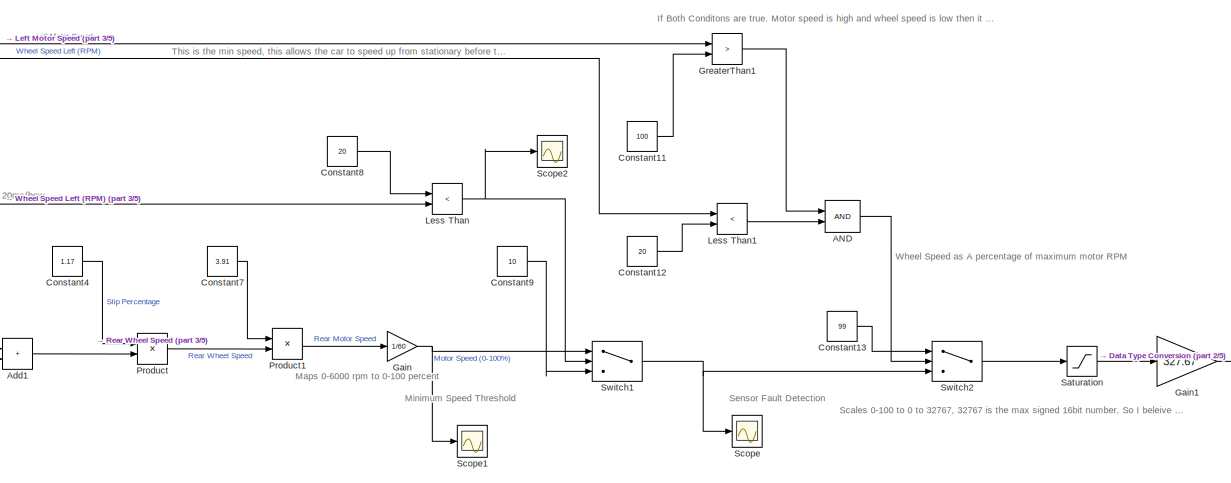
[diagram: root canvas - part 1/5, top center region]
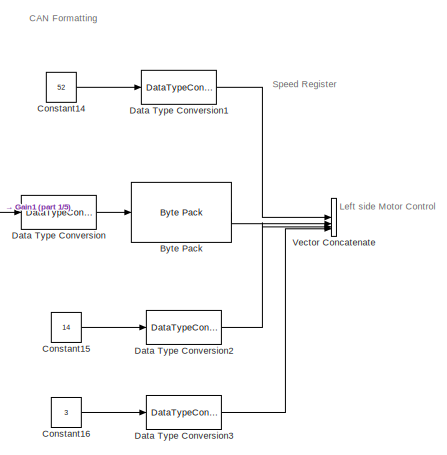
[diagram: root canvas - part 2/5, top right region]
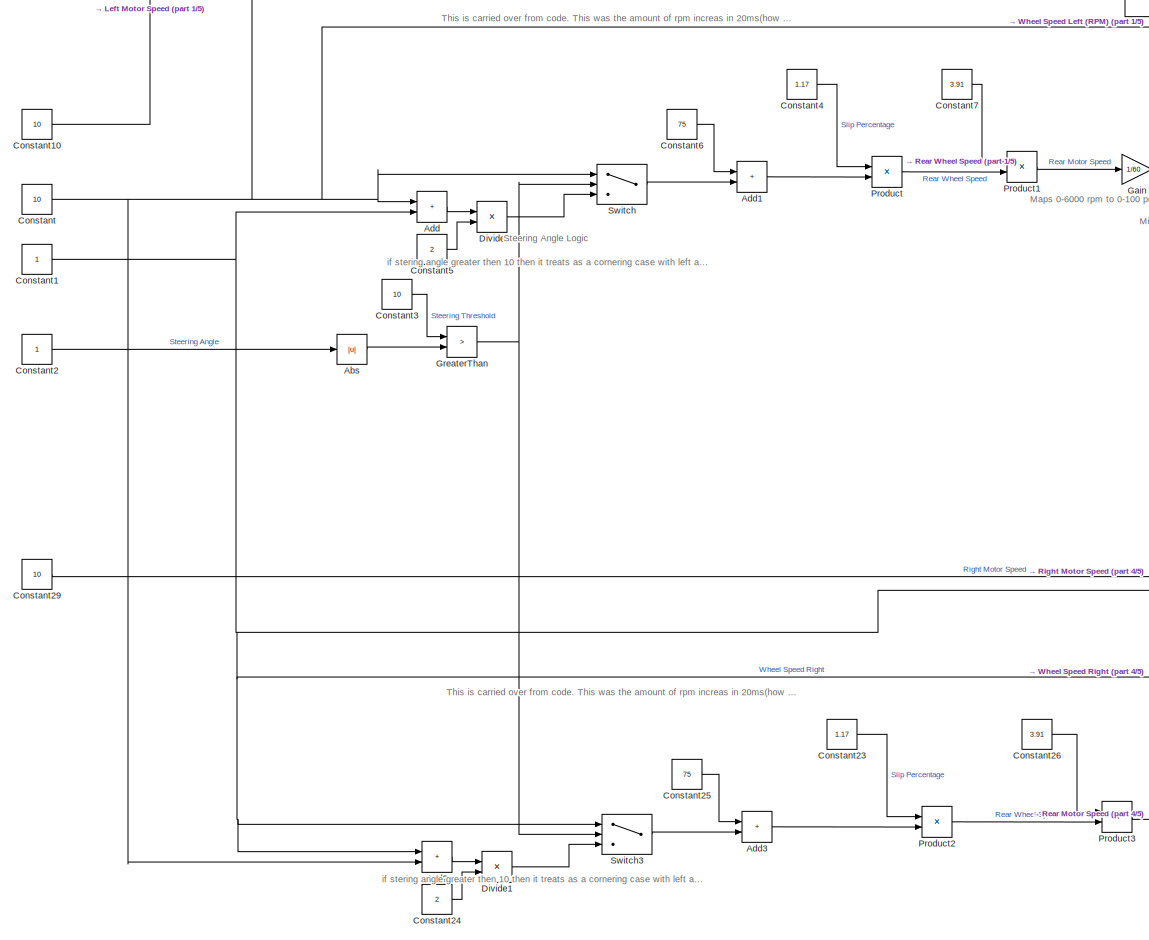
[diagram: root canvas - part 3/5, left side, full height]
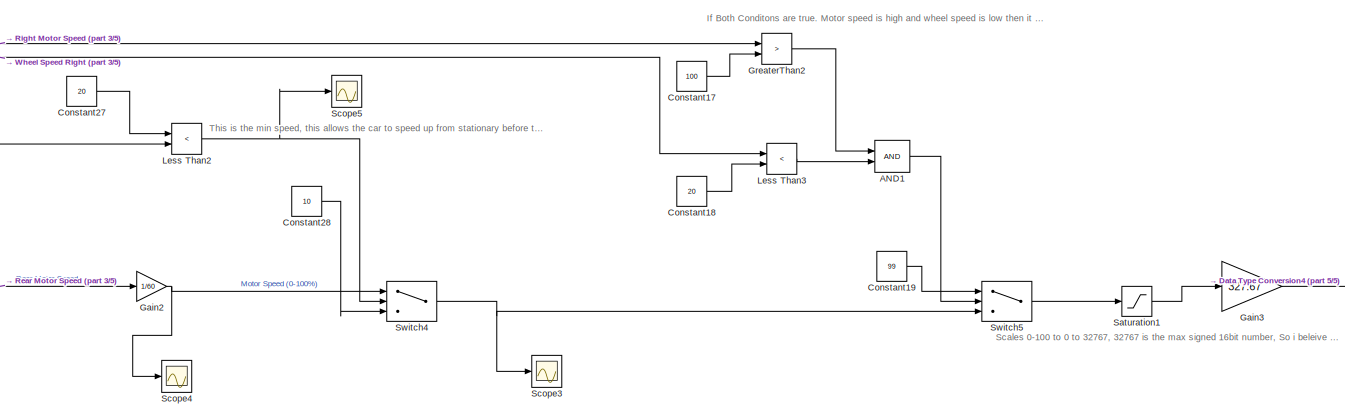
[diagram: root canvas - part 4/5, bottom center region]
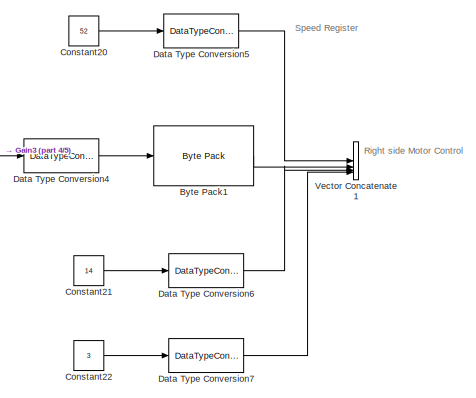
[diagram: root canvas - part 5/5, bottom right region]
MODEL slx_10c5e8b03d2c
KIND model
CONFIG AbsTol = auto
CONFIG EnableMultiTasking = off
CONFIG FixedStep = auto
CONFIG MaxStep = auto
CONFIG MinStep = auto
CONFIG RelTol = 1e-3
CONFIG SampleTimeConstraint = Unconstrained
CONFIG SolverName = VariableStepAuto
CONFIG StartTime = 0.0
CONFIG StopTime = 10.0
BLOCK [Logic] AND
  AllPortsSameDT = off
  IconShape = distinctive
  OutDataTypeStr = boolean
BLOCK [Logic] AND1
  AllPortsSameDT = off
  IconShape = distinctive
  OutDataTypeStr = boolean
BLOCK [Abs] Abs
  SaturateOnIntegerOverflow = off
BLOCK [Sum] Add
  IconShape = rectangular
BLOCK [Sum] Add1
  IconShape = rectangular
BLOCK [Sum] Add2
  IconShape = rectangular
BLOCK [Sum] Add3
  IconShape = rectangular
BLOCK [Reference] Byte Pack  REF=stmutilitieslib/Byte Pack
  SourceBlock = stmutilitieslib/Byte Pack
  SourceType = Byte pack
BLOCK [Reference] Byte Pack1  REF=stmutilitieslib/Byte Pack
  SourceBlock = stmutilitieslib/Byte Pack
  SourceType = Byte pack
BLOCK [Constant] Constant
  Value = 10
BLOCK [Constant] Constant1
BLOCK [Constant] Constant10
  Value = 10
BLOCK [Constant] Constant11
  Value = 100
BLOCK [Constant] Constant12
  Value = 20
BLOCK [Constant] Constant13
  Value = 99
BLOCK [Constant] Constant14
  Value = 52
BLOCK [Constant] Constant15
  Value = 14
BLOCK [Constant] Constant16
  Value = 3
BLOCK [Constant] Constant17
  Value = 100
BLOCK [Constant] Constant18
  Value = 20
BLOCK [Constant] Constant19
  Value = 99
BLOCK [Constant] Constant2
BLOCK [Constant] Constant20
  Value = 52
BLOCK [Constant] Constant21
  Value = 14
BLOCK [Constant] Constant22
  Value = 3
BLOCK [Constant] Constant23
  Value = 1.17
BLOCK [Constant] Constant24
  Value = 2
BLOCK [Constant] Constant25
  Value = 75
BLOCK [Constant] Constant26
  Value = 3.91
BLOCK [Constant] Constant27
  Value = 20
BLOCK [Constant] Constant28
  Value = 10
BLOCK [Constant] Constant29
  Value = 10
BLOCK [Constant] Constant3
  Value = 10
BLOCK [Constant] Constant4
  Value = 1.17
BLOCK [Constant] Constant5
  Value = 2
BLOCK [Constant] Constant6
  Value = 75
BLOCK [Constant] Constant7
  Value = 3.91
BLOCK [Constant] Constant8
  Value = 20
BLOCK [Constant] Constant9
  Value = 10
BLOCK [DataTypeConversion] Data Type Conversion
  OutDataTypeStr = int16
  RndMeth = Floor
  SaturateOnIntegerOverflow = off
BLOCK [DataTypeConversion] Data Type Conversion1
  OutDataTypeStr = uint8
  RndMeth = Floor
  SaturateOnIntegerOverflow = off
BLOCK [DataTypeConversion] Data Type Conversion2
  OutDataTypeStr = uint8
  RndMeth = Floor
  SaturateOnIntegerOverflow = off
BLOCK [DataTypeConversion] Data Type Conversion3
  OutDataTypeStr = uint8
  RndMeth = Floor
  SaturateOnIntegerOverflow = off
BLOCK [DataTypeConversion] Data Type Conversion4
  OutDataTypeStr = int16
  RndMeth = Floor
  SaturateOnIntegerOverflow = off
BLOCK [DataTypeConversion] Data Type Conversion5
  OutDataTypeStr = uint8
  RndMeth = Floor
  SaturateOnIntegerOverflow = off
BLOCK [DataTypeConversion] Data Type Conversion6
  OutDataTypeStr = uint8
  RndMeth = Floor
  SaturateOnIntegerOverflow = off
BLOCK [DataTypeConversion] Data Type Conversion7
  OutDataTypeStr = uint8
  RndMeth = Floor
  SaturateOnIntegerOverflow = off
BLOCK [Product] Divide
  Inputs = */
BLOCK [Product] Divide1
  Inputs = */
BLOCK [Gain] Gain
  Gain = 1/60
BLOCK [Gain] Gain1
  Gain = 327.67
BLOCK [Gain] Gain2
  Gain = 1/60
BLOCK [Gain] Gain3
  Gain = 327.67
BLOCK [RelationalOperator] GreaterThan
  InputSameDT = off
  Operator = >
  OutDataTypeStr = boolean
  RndMeth = Simplest
BLOCK [RelationalOperator] GreaterThan1
  InputSameDT = off
  Operator = >
  OutDataTypeStr = boolean
  RndMeth = Simplest
BLOCK [RelationalOperator] GreaterThan2
  InputSameDT = off
  Operator = >
  OutDataTypeStr = boolean
  RndMeth = Simplest
BLOCK [RelationalOperator] Less Than
  InputSameDT = off
  Operator = <
  OutDataTypeStr = boolean
  RndMeth = Simplest
BLOCK [RelationalOperator] Less Than1
  InputSameDT = off
  Operator = <
  OutDataTypeStr = boolean
  RndMeth = Simplest
BLOCK [RelationalOperator] Less Than2
  InputSameDT = off
  Operator = <
  OutDataTypeStr = boolean
  RndMeth = Simplest
BLOCK [RelationalOperator] Less Than3
  InputSameDT = off
  Operator = <
  OutDataTypeStr = boolean
  RndMeth = Simplest
BLOCK [Product] Product
BLOCK [Product] Product1
BLOCK [Product] Product2
BLOCK [Product] Product3
BLOCK [Saturate] Saturation
  LowerLimit = 0
  UpperLimit = 99
BLOCK [Saturate] Saturation1
  LowerLimit = 0
  UpperLimit = 99
BLOCK [Scope] Scope
  Floating = off
  NumInputPorts = 1
  ScopeSpecificationString = Simulink.scopes.TimeScopeBlockCfg('CurrentConfiguration', extmgr.ConfigurationSet(extmgr.Configuration('Core','General UI',true),extmgr.Configuration('Core','Source UI',true),extmgr.Configuration('Sources','WiredSimulink',true),extmgr.Configuration('Visuals','Time Domain',true,'SerializedDisplays',{struct('MinYLimReal','9.00000','MaxYLimReal','11.00000','YLabelReal','','MinYLimMag','9.00000','MaxY...<+1503ch>
BLOCK [Scope] Scope1
  Floating = off
  NumInputPorts = 1
  ScopeSpecificationString = Simulink.scopes.TimeScopeBlockCfg('CurrentConfiguration', extmgr.ConfigurationSet(extmgr.Configuration('Core','General UI',true),extmgr.Configuration('Core','Source UI',true),extmgr.Configuration('Sources','WiredSimulink',true,'DataLoggingVariableName','ScopeData1'),extmgr.Configuration('Visuals','Time Domain',true,'SerializedDisplays',{struct('MinYLimReal','5.48082','MaxYLimReal','7.48082','YLabe...<+1501ch>
BLOCK [Scope] Scope2
  Floating = off
  NumInputPorts = 1
  ScopeSpecificationString = Simulink.scopes.TimeScopeBlockCfg('CurrentConfiguration', extmgr.ConfigurationSet(extmgr.Configuration('Core','General UI',true),extmgr.Configuration('Core','Source UI',true),extmgr.Configuration('Sources','WiredSimulink',true,'DataLoggingVariableName','ScopeData2'),extmgr.Configuration('Visuals','Time Domain',true,'SerializedDisplays',{struct('MinYLimReal','-1.00000','MaxYLimReal','1.00000','YLab...<+1492ch>
BLOCK [Scope] Scope3
  Floating = off
  NumInputPorts = 1
  ScopeSpecificationString = Simulink.scopes.TimeScopeBlockCfg('CurrentConfiguration', extmgr.ConfigurationSet(extmgr.Configuration('Core','General UI',true),extmgr.Configuration('Core','Source UI',true),extmgr.Configuration('Sources','WiredSimulink',true,'DataLoggingVariableName','ScopeData3'),extmgr.Configuration('Visuals','Time Domain',true,'SerializedDisplays',{struct('MinYLimReal','9.00000','MaxYLimReal','11.00000','YLab...<+1542ch>
BLOCK [Scope] Scope4
  Floating = off
  NumInputPorts = 1
  ScopeSpecificationString = Simulink.scopes.TimeScopeBlockCfg('CurrentConfiguration', extmgr.ConfigurationSet(extmgr.Configuration('Core','General UI',true),extmgr.Configuration('Core','Source UI',true),extmgr.Configuration('Sources','WiredSimulink',true,'DataLoggingVariableName','ScopeData4'),extmgr.Configuration('Visuals','Time Domain',true,'SerializedDisplays',{struct('MinYLimReal','5.48082','MaxYLimReal','7.48082','YLabe...<+1501ch>
BLOCK [Scope] Scope5
  Floating = off
  NumInputPorts = 1
  ScopeSpecificationString = Simulink.scopes.TimeScopeBlockCfg('CurrentConfiguration', extmgr.ConfigurationSet(extmgr.Configuration('Core','General UI',true),extmgr.Configuration('Core','Source UI',true),extmgr.Configuration('Sources','WiredSimulink',true,'DataLoggingVariableName','ScopeData5'),extmgr.Configuration('Visuals','Time Domain',true,'SerializedDisplays',{struct('MinYLimReal','-1.00000','MaxYLimReal','1.00000','YLab...<+1492ch>
BLOCK [Switch] Switch
  Criteria = u2 > Threshold
  InputSameDT = off
  SaturateOnIntegerOverflow = off
BLOCK [Switch] Switch1
  Criteria = u2 > Threshold
  InputSameDT = off
  SaturateOnIntegerOverflow = off
BLOCK [Switch] Switch2
  Criteria = u2 > Threshold
  InputSameDT = off
  SaturateOnIntegerOverflow = off
BLOCK [Switch] Switch3
  Criteria = u2 > Threshold
  InputSameDT = off
  SaturateOnIntegerOverflow = off
BLOCK [Switch] Switch4
  Criteria = u2 > Threshold
  InputSameDT = off
  SaturateOnIntegerOverflow = off
BLOCK [Switch] Switch5
  Criteria = u2 > Threshold
  InputSameDT = off
  SaturateOnIntegerOverflow = off
BLOCK [Concatenate] Vector Concatenate
  NumInputs = 4
BLOCK [Concatenate] Vector Concatenate1
  NumInputs = 4
ANNOTATION (root): CAN Formatting
ANNOTATION (root): Minimum Speed Threshold
ANNOTATION (root): Sensor Fault Detection
ANNOTATION (root): Steering Angle Logic
ANNOTATION (root): Wheel Speed as A percentage of maximum motor RPM
ANNOTATION (root): If Both Conditons are true. Motor speed is high and wheel speed is low then it is assumed a wheel speed sensor error has occured. In this case the limit is set to the maximum.
ANNOTATION (root): Left side Motor Control
ANNOTATION (root): Maps 0-6000 rpm to 0-100 percent
ANNOTATION (root): Right side Motor Control
ANNOTATION (root): Scales 0-100 to 0 to 32767, 32767 is the max signed 16bit number, So I beleive this will be a percentage in the inverters
ANNOTATION (root): Scales 0-100 to 0 to 32767, 32767 is the max signed 16bit number, So i beleive this will be a percentage in the inverters
ANNOTATION (root): Speed Register
ANNOTATION (root): This is carried over from code. This was the amount of rpm increas in 20ms(how often code runs) under a 1G acceleration
ANNOTATION (root): This is the min speed, this allows the car to speed up from stationary before traction control starts, This allows the wheel speed sensor to be able to determine the speed.
ANNOTATION (root): if stering angle greater then 10 then it treats as a cornering case with left and right side being assigned different values. If less then 10 this is straight line case and both wheels are assigned the average of the two.
LINE AND1:1 -> Switch5:2
LINE AND:1 -> Switch2:2
LINE Abs:1 -> GreaterThan:2
LINE Add1:1 -> Product:2
LINE Add2:1 -> Divide1:1
LINE Add3:1 -> Product2:2
LINE Add:1 -> Divide:1
LINE Byte Pack1:1 -> Vector Concatenate1:2
LINE Byte Pack:1 -> Vector Concatenate:2
LINE Constant10:1 -> GreaterThan1:1
LINE Constant11:1 -> GreaterThan1:2
LINE Constant12:1 -> Less Than1:2
LINE Constant13:1 -> Switch2:1
LINE Constant14:1 -> Data Type Conversion1:1
LINE Constant15:1 -> Data Type Conversion2:1
LINE Constant16:1 -> Data Type Conversion3:1
LINE Constant17:1 -> GreaterThan2:2
LINE Constant18:1 -> Less Than3:2
LINE Constant19:1 -> Switch5:1
NET Constant1:1 -> Add2:1, Add:2, Less Than2:2, Less Than3:1, Switch3:1
LINE Constant20:1 -> Data Type Conversion5:1
LINE Constant21:1 -> Data Type Conversion6:1
LINE Constant22:1 -> Data Type Conversion7:1
LINE Constant23:1 -> Product2:1
LINE Constant24:1 -> Divide1:2
LINE Constant25:1 -> Add3:1
LINE Constant26:1 -> Product3:1
LINE Constant27:1 -> Less Than2:1
LINE Constant28:1 -> Switch4:3
LINE Constant29:1 -> GreaterThan2:1
LINE Constant2:1 -> Abs:1
LINE Constant3:1 -> GreaterThan:1
LINE Constant4:1 -> Product:1
LINE Constant5:1 -> Divide:2
LINE Constant6:1 -> Add1:1
LINE Constant7:1 -> Product1:1
LINE Constant8:1 -> Less Than:1
LINE Constant9:1 -> Switch1:3
NET Constant:1 -> Add2:2, Add:1, Less Than1:1, Less Than:2, Switch:1
LINE Data Type Conversion1:1 -> Vector Concatenate:1
LINE Data Type Conversion2:1 -> Vector Concatenate:3
LINE Data Type Conversion3:1 -> Vector Concatenate:4
LINE Data Type Conversion4:1 -> Byte Pack1:1
LINE Data Type Conversion5:1 -> Vector Concatenate1:1
LINE Data Type Conversion6:1 -> Vector Concatenate1:3
LINE Data Type Conversion7:1 -> Vector Concatenate1:4
LINE Data Type Conversion:1 -> Byte Pack:1
LINE Divide1:1 -> Switch3:3
LINE Divide:1 -> Switch:3
LINE Gain1:1 -> Data Type Conversion:1
NET Gain2:1 -> Scope4:1, Switch4:1
LINE Gain3:1 -> Data Type Conversion4:1
NET Gain:1 -> Scope1:1, Switch1:1
LINE GreaterThan1:1 -> AND:1
LINE GreaterThan2:1 -> AND1:1
NET GreaterThan:1 -> Switch3:2, Switch:2
LINE Less Than1:1 -> AND:2
NET Less Than2:1 -> Scope5:1, Switch4:2
LINE Less Than3:1 -> AND1:2
NET Less Than:1 -> Scope2:1, Switch1:2
LINE Product1:1 -> Gain:1
LINE Product2:1 -> Product3:2
LINE Product3:1 -> Gain2:1
LINE Product:1 -> Product1:2
LINE Saturation1:1 -> Gain3:1
LINE Saturation:1 -> Gain1:1
NET Switch1:1 -> Scope:1, Switch2:3
LINE Switch2:1 -> Saturation:1
LINE Switch3:1 -> Add3:2
NET Switch4:1 -> Scope3:1, Switch5:3
LINE Switch5:1 -> Saturation1:1
LINE Switch:1 -> Add1:2
note: NET lines group one-source signal fan-out (src -> all destinations, sorted); 1:1 wires keep LINE
